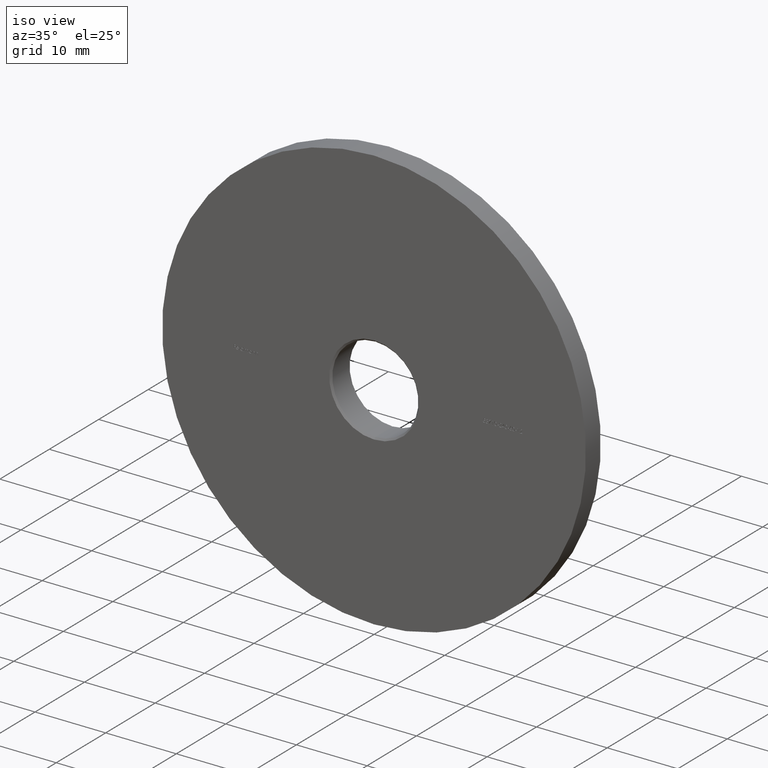
[diagram: clean part render]
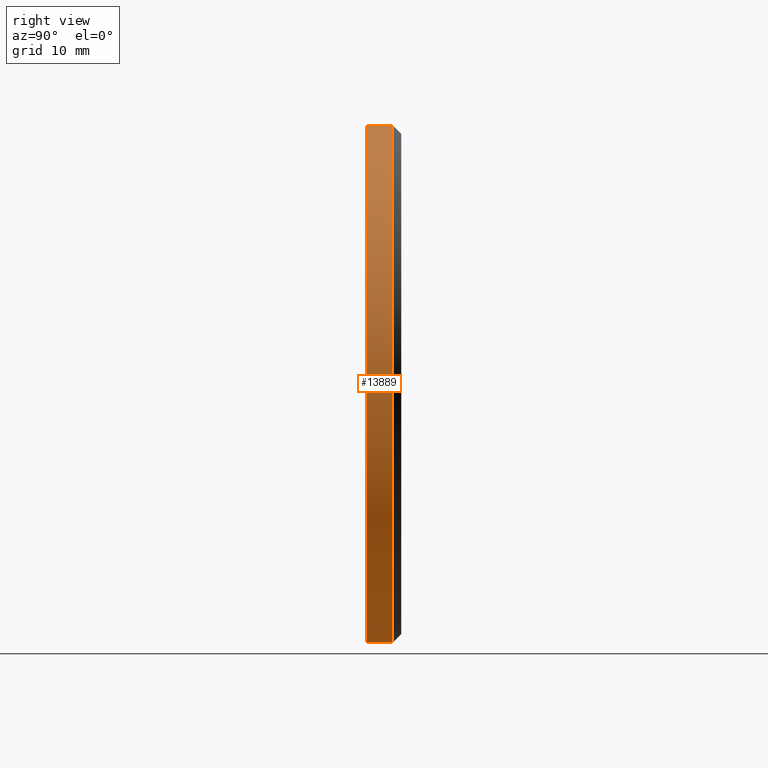
[diagram: tour spotlight — one face highlighted and labeled with its STEP entity id]
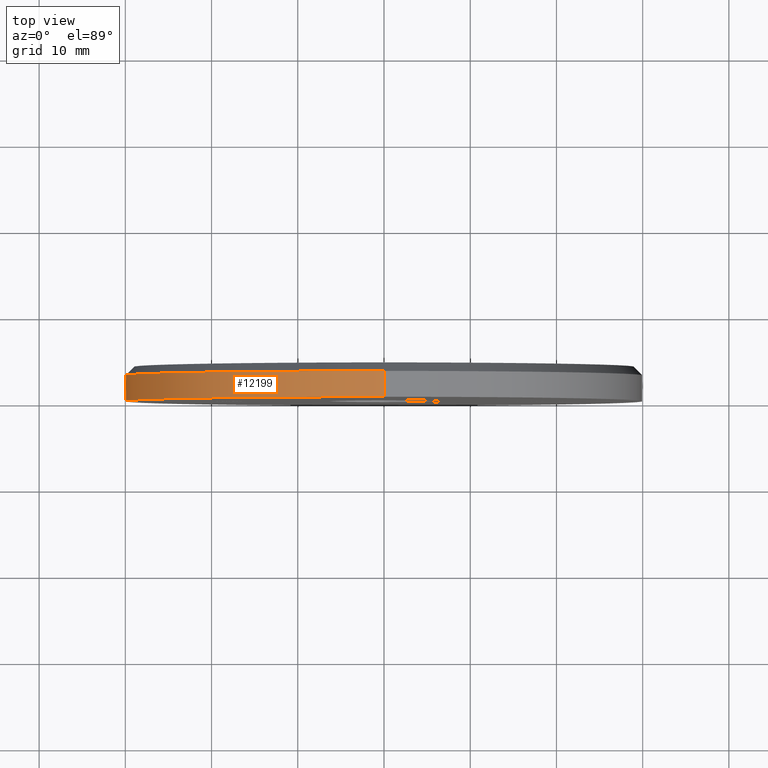
[diagram: tour spotlight — one face highlighted and labeled with its STEP entity id]
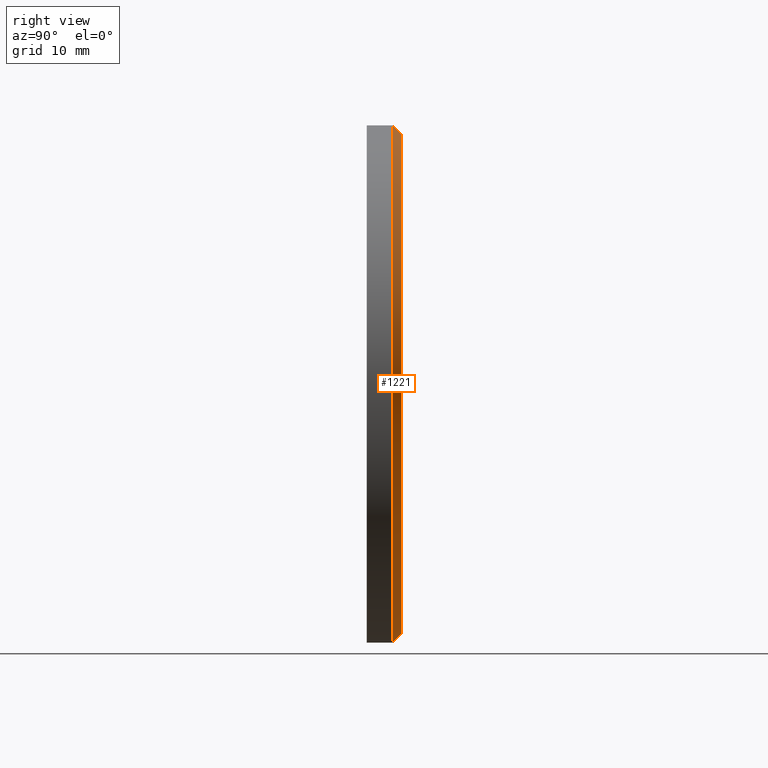
[diagram: tour spotlight — one face highlighted and labeled with its STEP entity id]
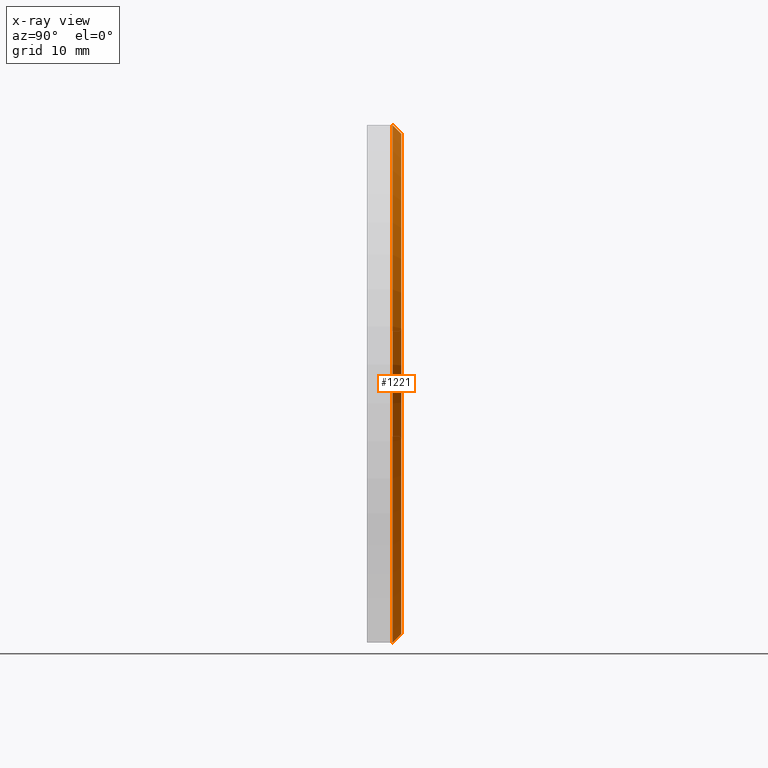
[diagram: x-ray of the same camera — body ghosted, this tour face saturated]
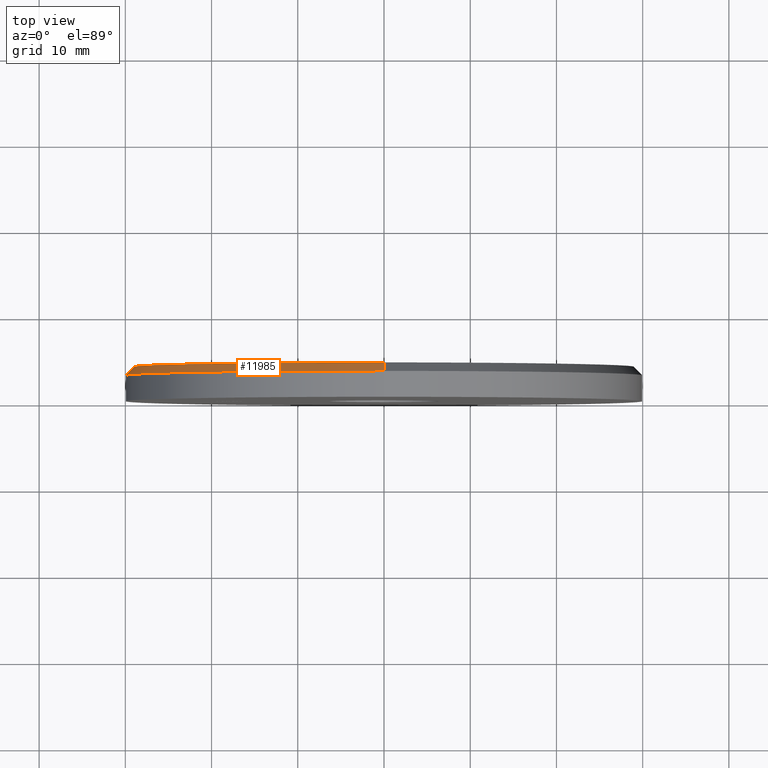
[diagram: tour spotlight — one face highlighted and labeled with its STEP entity id]
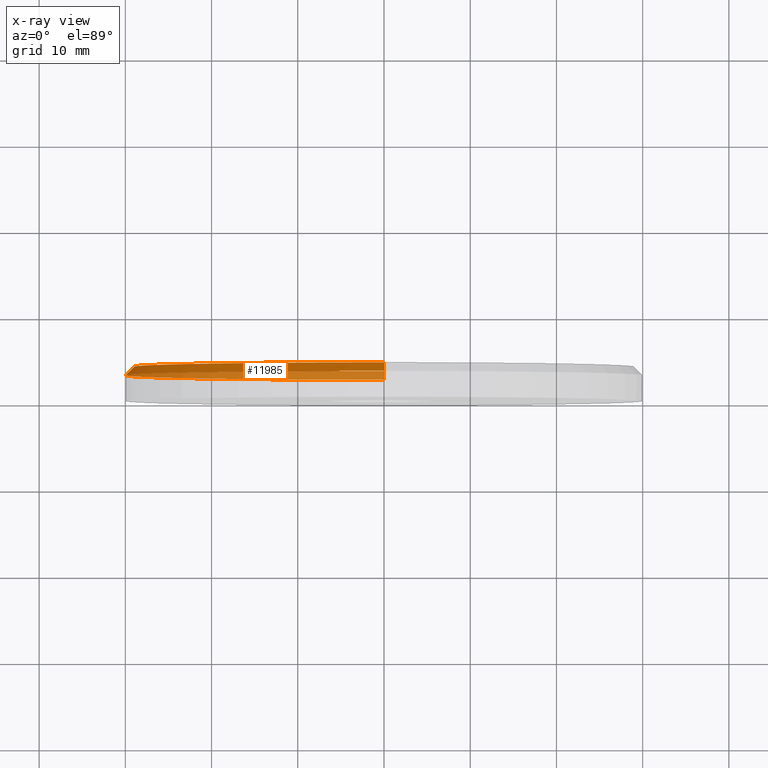
[diagram: x-ray of the same camera — body ghosted, this tour face saturated]
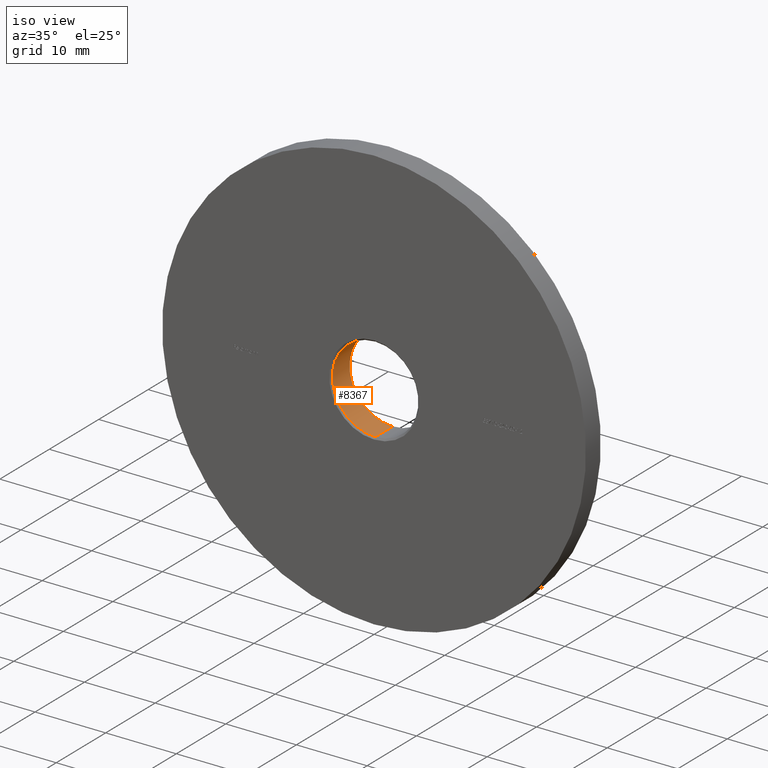
[diagram: tour spotlight — one face highlighted and labeled with its STEP entity id]
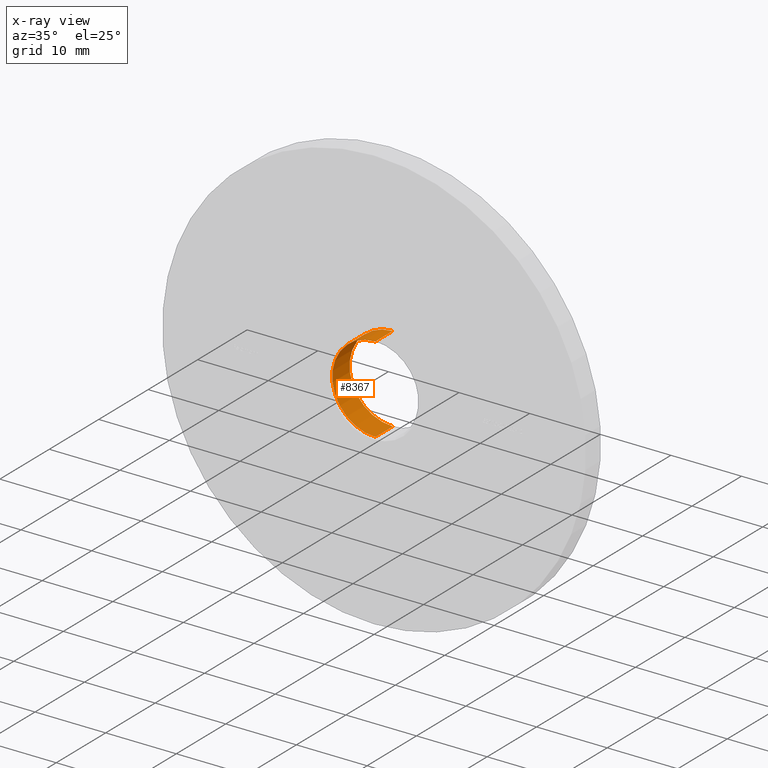
[diagram: x-ray of the same camera — body ghosted, this tour face saturated]
A machine part: a face-by-face anatomy tour. The part has 282 B-rep faces; the first image is the clean iso view, then the 5 largest visible faces are spotlighted one at a time (largest first), each with its STEP entity span.

Face 1 — right view, entity #13889. In plain terms, the highlighted cylindrical surface (partial cylindrical patch) has radius 30 mm, axis along (-0, -1, -0).
Definition (entity closure, byte-faithful):
#1173 = DIRECTION ( 'NONE',  ( -0.000000000000000000, -1.000000000000000000, -0.000000000000000000 ) ) ;
#1368 = CIRCLE ( 'NONE', #11846, 30.00000000000000000 ) ;
#4094 = DIRECTION ( 'NONE',  ( 0.000000000000000000, 0.000000000000000000, 1.000000000000000000 ) ) ;
#4341 = ORIENTED_EDGE ( 'NONE', *, *, #7279, .T. ) ;
#4384 = CARTESIAN_POINT ( 'NONE',  ( 3.673940397442059178E-15, 4.000000000000000000, 30.00000000000000000 ) ) ;
#4423 = CARTESIAN_POINT ( 'NONE',  ( 0.000000000000000000, 0.000000000000000000, 0.000000000000000000 ) ) ;
#4694 = CARTESIAN_POINT ( 'NONE',  ( 3.673940397442059178E-15, 3.000000000000006217, 30.00000000000000000 ) ) ;
#5000 = EDGE_CURVE ( 'NONE', #5542, #10142, #10539, .T. ) ;
#5542 = VERTEX_POINT ( 'NONE', #12370 ) ;
#5617 = VECTOR ( 'NONE', #1173, 1000.000000000000000 ) ;
#5621 = DIRECTION ( 'NONE',  ( 0.000000000000000000, 1.000000000000000000, 0.000000000000000000 ) ) ;
#6390 = DIRECTION ( 'NONE',  ( -0.000000000000000000, -1.000000000000000000, -0.000000000000000000 ) ) ;
#6774 = CARTESIAN_POINT ( 'NONE',  ( 0.000000000000000000, 0.000000000000000000, -30.00000000000000000 ) ) ;
#7259 = AXIS2_PLACEMENT_3D ( 'NONE', #9886, #6390, #10032 ) ;
#7279 = EDGE_CURVE ( 'NONE', #8390, #9687, #1368, .T. ) ;
#8040 = DIRECTION ( 'NONE',  ( -0.000000000000000000, -1.000000000000000000, -0.000000000000000000 ) ) ;
#8390 = VERTEX_POINT ( 'NONE', #9286 ) ;
#8804 = LINE ( 'NONE', #13148, #5617 ) ;
#9286 = CARTESIAN_POINT ( 'NONE',  ( 0.000000000000000000, 3.000000000000006217, -30.00000000000000000 ) ) ;
#9351 = EDGE_CURVE ( 'NONE', #8390, #10142, #8804, .T. ) ;
#9594 = EDGE_CURVE ( 'NONE', #9687, #5542, #11205, .T. ) ;
#9687 = VERTEX_POINT ( 'NONE', #4694 ) ;
#9886 = CARTESIAN_POINT ( 'NONE',  ( 0.000000000000000000, 4.000000000000000000, 0.000000000000000000 ) ) ;
#10032 = DIRECTION ( 'NONE',  ( 0.000000000000000000, 0.000000000000000000, -1.000000000000000000 ) ) ;
#10142 = VERTEX_POINT ( 'NONE', #6774 ) ;
#10539 = CIRCLE ( 'NONE', #13841, 30.00000000000000000 ) ;
#11205 = LINE ( 'NONE', #4384, #15348 ) ;
#11290 = DIRECTION ( 'NONE',  ( 0.000000000000000000, -1.000000000000000000, 0.000000000000000000 ) ) ;
#11496 = ORIENTED_EDGE ( 'NONE', *, *, #9594, .T. ) ;
#11846 = AXIS2_PLACEMENT_3D ( 'NONE', #14971, #11290, #4094 ) ;
#12145 = FACE_OUTER_BOUND ( 'NONE', #12883, .T. ) ;
#12370 = CARTESIAN_POINT ( 'NONE',  ( 3.673940397442059178E-15, 0.000000000000000000, 30.00000000000000000 ) ) ;
#12883 = EDGE_LOOP ( 'NONE', ( #4341, #11496, #12983, #15485 ) ) ;
#12983 = ORIENTED_EDGE ( 'NONE', *, *, #5000, .T. ) ;
#13148 = CARTESIAN_POINT ( 'NONE',  ( 0.000000000000000000, 4.000000000000000000, -30.00000000000000000 ) ) ;
#13841 = AXIS2_PLACEMENT_3D ( 'NONE', #4423, #5621, #13997 ) ;
#13889 = ADVANCED_FACE ( 'NONE', ( #12145 ), #15121, .T. ) ;
#13997 = DIRECTION ( 'NONE',  ( 0.000000000000000000, 0.000000000000000000, 1.000000000000000000 ) ) ;
#14971 = CARTESIAN_POINT ( 'NONE',  ( 0.000000000000000000, 3.000000000000006217, 0.000000000000000000 ) ) ;
#15121 = CYLINDRICAL_SURFACE ( 'NONE', #7259, 30.00000000000000000 ) ;
#15348 = VECTOR ( 'NONE', #8040, 1000.000000000000000 ) ;
#15485 = ORIENTED_EDGE ( 'NONE', *, *, #9351, .F. ) ;

Face 2 — top view, entity #12199. In plain terms, the highlighted cylindrical surface (partial cylindrical patch) has radius 30 mm, axis along (-0, -1, -0).
Definition (entity closure, byte-faithful):
#1173 = DIRECTION ( 'NONE',  ( -0.000000000000000000, -1.000000000000000000, -0.000000000000000000 ) ) ;
#1748 = AXIS2_PLACEMENT_3D ( 'NONE', #12625, #10130, #3007 ) ;
#1892 = DIRECTION ( 'NONE',  ( 0.000000000000000000, 0.000000000000000000, 1.000000000000000000 ) ) ;
#2808 = FACE_OUTER_BOUND ( 'NONE', #3616, .T. ) ;
#3007 = DIRECTION ( 'NONE',  ( 0.000000000000000000, 0.000000000000000000, 1.000000000000000000 ) ) ;
#3201 = CARTESIAN_POINT ( 'NONE',  ( 0.000000000000000000, 0.000000000000000000, 0.000000000000000000 ) ) ;
#3616 = EDGE_LOOP ( 'NONE', ( #5144, #13307, #6868, #5848 ) ) ;
#3761 = AXIS2_PLACEMENT_3D ( 'NONE', #3201, #10372, #1892 ) ;
#4148 = AXIS2_PLACEMENT_3D ( 'NONE', #14437, #7422, #12146 ) ;
#4384 = CARTESIAN_POINT ( 'NONE',  ( 3.673940397442059178E-15, 4.000000000000000000, 30.00000000000000000 ) ) ;
#4694 = CARTESIAN_POINT ( 'NONE',  ( 3.673940397442059178E-15, 3.000000000000006217, 30.00000000000000000 ) ) ;
#5144 = ORIENTED_EDGE ( 'NONE', *, *, #9594, .F. ) ;
#5542 = VERTEX_POINT ( 'NONE', #12370 ) ;
#5617 = VECTOR ( 'NONE', #1173, 1000.000000000000000 ) ;
#5632 = CIRCLE ( 'NONE', #1748, 30.00000000000000000 ) ;
#5848 = ORIENTED_EDGE ( 'NONE', *, *, #14903, .T. ) ;
#6313 = CIRCLE ( 'NONE', #3761, 30.00000000000000000 ) ;
#6774 = CARTESIAN_POINT ( 'NONE',  ( 0.000000000000000000, 0.000000000000000000, -30.00000000000000000 ) ) ;
#6868 = ORIENTED_EDGE ( 'NONE', *, *, #9351, .T. ) ;
#7422 = DIRECTION ( 'NONE',  ( -0.000000000000000000, -1.000000000000000000, -0.000000000000000000 ) ) ;
#8040 = DIRECTION ( 'NONE',  ( -0.000000000000000000, -1.000000000000000000, -0.000000000000000000 ) ) ;
#8357 = EDGE_CURVE ( 'NONE', #9687, #8390, #5632, .T. ) ;
#8390 = VERTEX_POINT ( 'NONE', #9286 ) ;
#8804 = LINE ( 'NONE', #13148, #5617 ) ;
#9286 = CARTESIAN_POINT ( 'NONE',  ( 0.000000000000000000, 3.000000000000006217, -30.00000000000000000 ) ) ;
#9351 = EDGE_CURVE ( 'NONE', #8390, #10142, #8804, .T. ) ;
#9594 = EDGE_CURVE ( 'NONE', #9687, #5542, #11205, .T. ) ;
#9687 = VERTEX_POINT ( 'NONE', #4694 ) ;
#10130 = DIRECTION ( 'NONE',  ( 0.000000000000000000, -1.000000000000000000, 0.000000000000000000 ) ) ;
#10142 = VERTEX_POINT ( 'NONE', #6774 ) ;
#10372 = DIRECTION ( 'NONE',  ( 0.000000000000000000, 1.000000000000000000, 0.000000000000000000 ) ) ;
#11205 = LINE ( 'NONE', #4384, #15348 ) ;
#12146 = DIRECTION ( 'NONE',  ( 0.000000000000000000, 0.000000000000000000, -1.000000000000000000 ) ) ;
#12199 = ADVANCED_FACE ( 'NONE', ( #2808 ), #12529, .T. ) ;
#12370 = CARTESIAN_POINT ( 'NONE',  ( 3.673940397442059178E-15, 0.000000000000000000, 30.00000000000000000 ) ) ;
#12529 = CYLINDRICAL_SURFACE ( 'NONE', #4148, 30.00000000000000000 ) ;
#12625 = CARTESIAN_POINT ( 'NONE',  ( 0.000000000000000000, 3.000000000000006217, 0.000000000000000000 ) ) ;
#13148 = CARTESIAN_POINT ( 'NONE',  ( 0.000000000000000000, 4.000000000000000000, -30.00000000000000000 ) ) ;
#13307 = ORIENTED_EDGE ( 'NONE', *, *, #8357, .T. ) ;
#14437 = CARTESIAN_POINT ( 'NONE',  ( 0.000000000000000000, 4.000000000000000000, 0.000000000000000000 ) ) ;
#14903 = EDGE_CURVE ( 'NONE', #10142, #5542, #6313, .T. ) ;
#15348 = VECTOR ( 'NONE', #8040, 1000.000000000000000 ) ;

Face 3 — right view, entity #1221. An x-ray twin of the same camera follows (body ghosted, this face saturated) — the face is partly hidden behind the body. In plain terms, the highlighted conical surface has half-angle 45 deg.
Definition (entity closure, byte-faithful):
#376 = CARTESIAN_POINT ( 'NONE',  ( 3.612708057484691604E-15, 4.000000000000000000, 29.00000000000000000 ) ) ;
#422 = DIRECTION ( 'NONE',  ( 0.000000000000000000, 1.000000000000000000, 0.000000000000000000 ) ) ;
#883 = CONICAL_SURFACE ( 'NONE', #13532, 29.00000000000000000, 0.7853981633974501664 ) ;
#1036 = ORIENTED_EDGE ( 'NONE', *, *, #1851, .T. ) ;
#1221 = ADVANCED_FACE ( 'NONE', ( #4059 ), #883, .T. ) ;
#1313 = EDGE_CURVE ( 'NONE', #9429, #12964, #14542, .T. ) ;
#1368 = CIRCLE ( 'NONE', #11846, 30.00000000000000000 ) ;
#1851 = EDGE_CURVE ( 'NONE', #9429, #9687, #13969, .T. ) ;
#2345 = EDGE_LOOP ( 'NONE', ( #11368, #1036, #14438, #7731 ) ) ;
#2597 = CARTESIAN_POINT ( 'NONE',  ( 0.000000000000000000, 4.000000000000000000, -29.00000000000000000 ) ) ;
#4059 = FACE_OUTER_BOUND ( 'NONE', #2345, .T. ) ;
#4094 = DIRECTION ( 'NONE',  ( 0.000000000000000000, 0.000000000000000000, 1.000000000000000000 ) ) ;
#4694 = CARTESIAN_POINT ( 'NONE',  ( 3.673940397442059178E-15, 3.000000000000006217, 30.00000000000000000 ) ) ;
#5441 = EDGE_CURVE ( 'NONE', #12964, #8390, #9789, .T. ) ;
#5540 = VECTOR ( 'NONE', #8094, 999.9999999999998863 ) ;
#5711 = DIRECTION ( 'NONE',  ( 0.000000000000000000, 0.000000000000000000, -1.000000000000000000 ) ) ;
#5768 = CARTESIAN_POINT ( 'NONE',  ( 0.000000000000000000, 4.000000000000000000, 0.000000000000000000 ) ) ;
#6242 = VECTOR ( 'NONE', #7488, 999.9999999999998863 ) ;
#6480 = DIRECTION ( 'NONE',  ( 0.000000000000000000, 0.000000000000000000, 1.000000000000000000 ) ) ;
#7079 = DIRECTION ( 'NONE',  ( 0.000000000000000000, -1.000000000000000000, 0.000000000000000000 ) ) ;
#7224 = CARTESIAN_POINT ( 'NONE',  ( 0.000000000000000000, 4.000000000000000000, -29.00000000000000000 ) ) ;
#7279 = EDGE_CURVE ( 'NONE', #8390, #9687, #1368, .T. ) ;
#7488 = DIRECTION ( 'NONE',  ( 0.000000000000000000, -0.7071067811865462405, -0.7071067811865489050 ) ) ;
#7731 = ORIENTED_EDGE ( 'NONE', *, *, #5441, .F. ) ;
#8094 = DIRECTION ( 'NONE',  ( 8.659560562354950115E-17, -0.7071067811865462405, 0.7071067811865489050 ) ) ;
#8390 = VERTEX_POINT ( 'NONE', #9286 ) ;
#8783 = CARTESIAN_POINT ( 'NONE',  ( 0.000000000000000000, 4.000000000000000000, 0.000000000000000000 ) ) ;
#9286 = CARTESIAN_POINT ( 'NONE',  ( 0.000000000000000000, 3.000000000000006217, -30.00000000000000000 ) ) ;
#9429 = VERTEX_POINT ( 'NONE', #376 ) ;
#9687 = VERTEX_POINT ( 'NONE', #4694 ) ;
#9789 = LINE ( 'NONE', #2597, #6242 ) ;
#10302 = AXIS2_PLACEMENT_3D ( 'NONE', #8783, #422, #6480 ) ;
#11290 = DIRECTION ( 'NONE',  ( 0.000000000000000000, -1.000000000000000000, 0.000000000000000000 ) ) ;
#11368 = ORIENTED_EDGE ( 'NONE', *, *, #1313, .F. ) ;
#11493 = CARTESIAN_POINT ( 'NONE',  ( 3.551475717527324030E-15, 4.000000000000000000, 29.00000000000000000 ) ) ;
#11846 = AXIS2_PLACEMENT_3D ( 'NONE', #14971, #11290, #4094 ) ;
#12964 = VERTEX_POINT ( 'NONE', #7224 ) ;
#13532 = AXIS2_PLACEMENT_3D ( 'NONE', #5768, #7079, #5711 ) ;
#13969 = LINE ( 'NONE', #11493, #5540 ) ;
#14438 = ORIENTED_EDGE ( 'NONE', *, *, #7279, .F. ) ;
#14542 = CIRCLE ( 'NONE', #10302, 29.00000000000000000 ) ;
#14971 = CARTESIAN_POINT ( 'NONE',  ( 0.000000000000000000, 3.000000000000006217, 0.000000000000000000 ) ) ;

Face 4 — top view, entity #11985. An x-ray twin of the same camera follows (body ghosted, this face saturated) — the face is partly hidden behind the body. In plain terms, the highlighted conical surface has half-angle 45 deg.
Definition (entity closure, byte-faithful):
#376 = CARTESIAN_POINT ( 'NONE',  ( 3.612708057484691604E-15, 4.000000000000000000, 29.00000000000000000 ) ) ;
#1748 = AXIS2_PLACEMENT_3D ( 'NONE', #12625, #10130, #3007 ) ;
#1851 = EDGE_CURVE ( 'NONE', #9429, #9687, #13969, .T. ) ;
#2597 = CARTESIAN_POINT ( 'NONE',  ( 0.000000000000000000, 4.000000000000000000, -29.00000000000000000 ) ) ;
#2660 = CARTESIAN_POINT ( 'NONE',  ( 0.000000000000000000, 4.000000000000000000, 0.000000000000000000 ) ) ;
#3007 = DIRECTION ( 'NONE',  ( 0.000000000000000000, 0.000000000000000000, 1.000000000000000000 ) ) ;
#3180 = ORIENTED_EDGE ( 'NONE', *, *, #1851, .F. ) ;
#4169 = ORIENTED_EDGE ( 'NONE', *, *, #11244, .F. ) ;
#4694 = CARTESIAN_POINT ( 'NONE',  ( 3.673940397442059178E-15, 3.000000000000006217, 30.00000000000000000 ) ) ;
#5043 = DIRECTION ( 'NONE',  ( 0.000000000000000000, -1.000000000000000000, 0.000000000000000000 ) ) ;
#5441 = EDGE_CURVE ( 'NONE', #12964, #8390, #9789, .T. ) ;
#5540 = VECTOR ( 'NONE', #8094, 999.9999999999998863 ) ;
#5632 = CIRCLE ( 'NONE', #1748, 30.00000000000000000 ) ;
#6242 = VECTOR ( 'NONE', #7488, 999.9999999999998863 ) ;
#6415 = EDGE_LOOP ( 'NONE', ( #3180, #4169, #9870, #8930 ) ) ;
#6759 = DIRECTION ( 'NONE',  ( 0.000000000000000000, 0.000000000000000000, 1.000000000000000000 ) ) ;
#7224 = CARTESIAN_POINT ( 'NONE',  ( 0.000000000000000000, 4.000000000000000000, -29.00000000000000000 ) ) ;
#7488 = DIRECTION ( 'NONE',  ( 0.000000000000000000, -0.7071067811865462405, -0.7071067811865489050 ) ) ;
#8094 = DIRECTION ( 'NONE',  ( 8.659560562354950115E-17, -0.7071067811865462405, 0.7071067811865489050 ) ) ;
#8357 = EDGE_CURVE ( 'NONE', #9687, #8390, #5632, .T. ) ;
#8390 = VERTEX_POINT ( 'NONE', #9286 ) ;
#8409 = CIRCLE ( 'NONE', #9839, 29.00000000000000000 ) ;
#8930 = ORIENTED_EDGE ( 'NONE', *, *, #8357, .F. ) ;
#9202 = DIRECTION ( 'NONE',  ( 0.000000000000000000, 1.000000000000000000, 0.000000000000000000 ) ) ;
#9286 = CARTESIAN_POINT ( 'NONE',  ( 0.000000000000000000, 3.000000000000006217, -30.00000000000000000 ) ) ;
#9429 = VERTEX_POINT ( 'NONE', #376 ) ;
#9687 = VERTEX_POINT ( 'NONE', #4694 ) ;
#9789 = LINE ( 'NONE', #2597, #6242 ) ;
#9839 = AXIS2_PLACEMENT_3D ( 'NONE', #12689, #9202, #6759 ) ;
#9870 = ORIENTED_EDGE ( 'NONE', *, *, #5441, .T. ) ;
#10130 = DIRECTION ( 'NONE',  ( 0.000000000000000000, -1.000000000000000000, 0.000000000000000000 ) ) ;
#10256 = CONICAL_SURFACE ( 'NONE', #11968, 29.00000000000000000, 0.7853981633974501664 ) ;
#11244 = EDGE_CURVE ( 'NONE', #12964, #9429, #8409, .T. ) ;
#11493 = CARTESIAN_POINT ( 'NONE',  ( 3.551475717527324030E-15, 4.000000000000000000, 29.00000000000000000 ) ) ;
#11954 = FACE_OUTER_BOUND ( 'NONE', #6415, .T. ) ;
#11968 = AXIS2_PLACEMENT_3D ( 'NONE', #2660, #5043, #13772 ) ;
#11985 = ADVANCED_FACE ( 'NONE', ( #11954 ), #10256, .T. ) ;
#12625 = CARTESIAN_POINT ( 'NONE',  ( 0.000000000000000000, 3.000000000000006217, 0.000000000000000000 ) ) ;
#12689 = CARTESIAN_POINT ( 'NONE',  ( 0.000000000000000000, 4.000000000000000000, 0.000000000000000000 ) ) ;
#12964 = VERTEX_POINT ( 'NONE', #7224 ) ;
#13772 = DIRECTION ( 'NONE',  ( 0.000000000000000000, 0.000000000000000000, -1.000000000000000000 ) ) ;
#13969 = LINE ( 'NONE', #11493, #5540 ) ;

Face 5 — iso view, entity #8367. An x-ray twin of the same camera follows (body ghosted, this face saturated) — the face is partly hidden behind the body. In plain terms, the highlighted cylindrical surface (partial cylindrical patch) has radius 6.1 mm, axis along (-0, -1, -0).
Definition (entity closure, byte-faithful):
#262 = VECTOR ( 'NONE', #3096, 1000.000000000000000 ) ;
#339 = CIRCLE ( 'NONE', #9654, 6.099999999999999645 ) ;
#809 = EDGE_LOOP ( 'NONE', ( #10577, #6179, #7682, #5655 ) ) ;
#843 = EDGE_CURVE ( 'NONE', #7516, #6529, #1270, .T. ) ;
#1270 = CIRCLE ( 'NONE', #7899, 6.099999999999999645 ) ;
#3047 = CARTESIAN_POINT ( 'NONE',  ( 0.000000000000000000, 3.750000000000011990, 0.000000000000000000 ) ) ;
#3096 = DIRECTION ( 'NONE',  ( -0.000000000000000000, -1.000000000000000000, -0.000000000000000000 ) ) ;
#3499 = DIRECTION ( 'NONE',  ( -0.000000000000000000, -1.000000000000000000, -0.000000000000000000 ) ) ;
#3714 = VERTEX_POINT ( 'NONE', #4904 ) ;
#4280 = CARTESIAN_POINT ( 'NONE',  ( 7.470345474798854293E-16, 3.750000000000011990, 6.099999999999999645 ) ) ;
#4743 = DIRECTION ( 'NONE',  ( 0.000000000000000000, 0.000000000000000000, 1.000000000000000000 ) ) ;
#4904 = CARTESIAN_POINT ( 'NONE',  ( 7.470345474798854293E-16, 0.2500000000000088818, 6.099999999999999645 ) ) ;
#4963 = CARTESIAN_POINT ( 'NONE',  ( 0.000000000000000000, 3.750000000000011990, -6.099999999999999645 ) ) ;
#5067 = EDGE_CURVE ( 'NONE', #6529, #3714, #5486, .T. ) ;
#5389 = DIRECTION ( 'NONE',  ( -0.000000000000000000, -1.000000000000000000, -0.000000000000000000 ) ) ;
#5486 = LINE ( 'NONE', #9125, #262 ) ;
#5655 = ORIENTED_EDGE ( 'NONE', *, *, #13624, .F. ) ;
#6179 = ORIENTED_EDGE ( 'NONE', *, *, #5067, .T. ) ;
#6529 = VERTEX_POINT ( 'NONE', #4280 ) ;
#7088 = LINE ( 'NONE', #14448, #10434 ) ;
#7516 = VERTEX_POINT ( 'NONE', #4963 ) ;
#7682 = ORIENTED_EDGE ( 'NONE', *, *, #14241, .T. ) ;
#7899 = AXIS2_PLACEMENT_3D ( 'NONE', #3047, #9074, #12719 ) ;
#8367 = ADVANCED_FACE ( 'NONE', ( #12012 ), #14820, .F. ) ;
#8984 = DIRECTION ( 'NONE',  ( 0.000000000000000000, 0.000000000000000000, -1.000000000000000000 ) ) ;
#9074 = DIRECTION ( 'NONE',  ( 0.000000000000000000, 1.000000000000000000, 0.000000000000000000 ) ) ;
#9125 = CARTESIAN_POINT ( 'NONE',  ( 7.470345474798854293E-16, 4.000000000000000000, 6.099999999999999645 ) ) ;
#9654 = AXIS2_PLACEMENT_3D ( 'NONE', #14365, #3499, #4743 ) ;
#10434 = VECTOR ( 'NONE', #10752, 1000.000000000000000 ) ;
#10555 = CARTESIAN_POINT ( 'NONE',  ( 0.000000000000000000, 0.2500000000000088818, -6.099999999999999645 ) ) ;
#10577 = ORIENTED_EDGE ( 'NONE', *, *, #843, .T. ) ;
#10752 = DIRECTION ( 'NONE',  ( -0.000000000000000000, -1.000000000000000000, -0.000000000000000000 ) ) ;
#11019 = AXIS2_PLACEMENT_3D ( 'NONE', #11282, #5389, #8984 ) ;
#11282 = CARTESIAN_POINT ( 'NONE',  ( 0.000000000000000000, 4.000000000000000000, 0.000000000000000000 ) ) ;
#12012 = FACE_OUTER_BOUND ( 'NONE', #809, .T. ) ;
#12719 = DIRECTION ( 'NONE',  ( 0.000000000000000000, 0.000000000000000000, 1.000000000000000000 ) ) ;
#13624 = EDGE_CURVE ( 'NONE', #7516, #14602, #7088, .T. ) ;
#14241 = EDGE_CURVE ( 'NONE', #3714, #14602, #339, .T. ) ;
#14365 = CARTESIAN_POINT ( 'NONE',  ( 0.000000000000000000, 0.2500000000000088818, 0.000000000000000000 ) ) ;
#14448 = CARTESIAN_POINT ( 'NONE',  ( 0.000000000000000000, 4.000000000000000000, -6.099999999999999645 ) ) ;
#14602 = VERTEX_POINT ( 'NONE', #10555 ) ;
#14820 = CYLINDRICAL_SURFACE ( 'NONE', #11019, 6.099999999999999645 ) ;